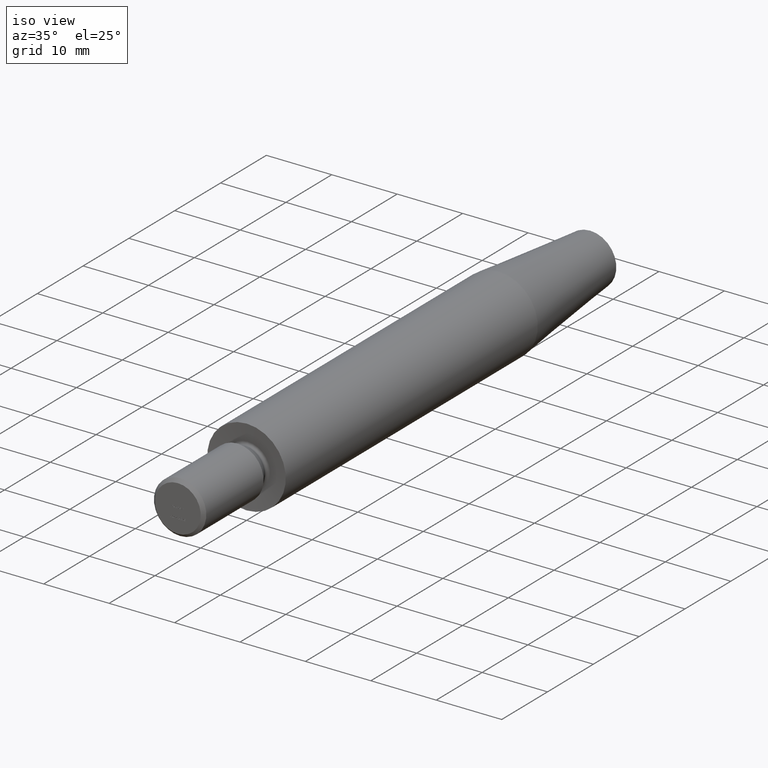
[diagram: clean part render]
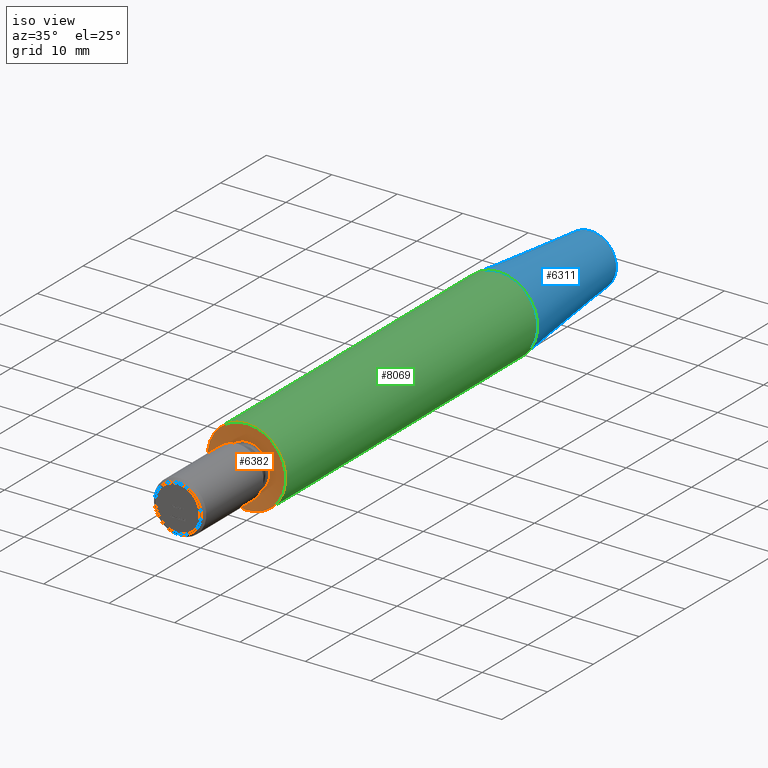
[diagram: same view with three faces highlighted in distinct colors, each labeled with its STEP entity id]
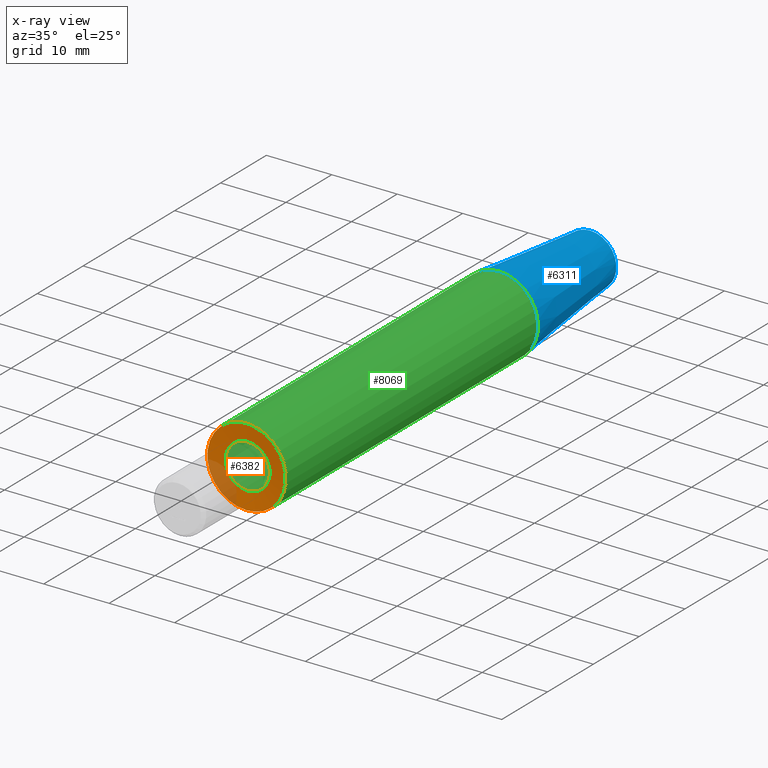
[diagram: x-ray of the same camera — body ghosted, the three highlighted faces saturated]
A machine part, iso view with three faces highlighted in distinct colors.
The next image is the same camera in x-ray (body ghosted, the three faces saturated) — at least one of them is partly hidden behind the body in this view.
Their STEP definitions:

[orange] entity #6382 — the highlighted conical surface has half-angle 85 deg.
#200 = EDGE_CURVE ( 'NONE', #7536, #7536, #11445, .T. ) ;
#1148 = DIRECTION ( 'NONE',  ( 0.000000000000000000, 0.000000000000000000, -1.000000000000000000 ) ) ;
#1271 = AXIS2_PLACEMENT_3D ( 'NONE', #10047, #7098, #1148 ) ;
#1739 = DIRECTION ( 'NONE',  ( -0.000000000000000000, -1.000000000000000000, -0.000000000000000000 ) ) ;
#2558 = VERTEX_POINT ( 'NONE', #4102 ) ;
#2774 = FACE_OUTER_BOUND ( 'NONE', #5287, .T. ) ;
#4102 = CARTESIAN_POINT ( 'NONE',  ( 0.000000000000000000, 0.000000000000000000, -6.000000000000003553 ) ) ;
#4888 = ORIENTED_EDGE ( 'NONE', *, *, #9991, .T. ) ;
#5287 = EDGE_LOOP ( 'NONE', ( #4888 ) ) ;
#6272 = AXIS2_PLACEMENT_3D ( 'NONE', #12611, #1739, #11614 ) ;
#6382 = ADVANCED_FACE ( 'NONE', ( #2774, #10703 ), #9626, .F. ) ;
#6612 = ORIENTED_EDGE ( 'NONE', *, *, #200, .F. ) ;
#6666 = DIRECTION ( 'NONE',  ( 0.000000000000000000, 0.000000000000000000, -1.000000000000000000 ) ) ;
#7098 = DIRECTION ( 'NONE',  ( -0.000000000000000000, -1.000000000000000000, -0.000000000000000000 ) ) ;
#7233 = EDGE_LOOP ( 'NONE', ( #6612 ) ) ;
#7442 = CARTESIAN_POINT ( 'NONE',  ( 0.000000000000000000, 0.2253502873125028116, 0.000000000000000000 ) ) ;
#7536 = VERTEX_POINT ( 'NONE', #11955 ) ;
#9626 = CONICAL_SURFACE ( 'NONE', #12564, 3.424234429575815142, 1.483529864195179737 ) ;
#9640 = CIRCLE ( 'NONE', #6272, 6.000000000000003553 ) ;
#9991 = EDGE_CURVE ( 'NONE', #2558, #2558, #9640, .T. ) ;
#10047 = CARTESIAN_POINT ( 'NONE',  ( 0.000000000000000000, 0.2253502873125028116, 0.000000000000000000 ) ) ;
#10446 = DIRECTION ( 'NONE',  ( -0.000000000000000000, -1.000000000000000000, -0.000000000000000000 ) ) ;
#10703 = FACE_BOUND ( 'NONE', #7233, .T. ) ;
#11445 = CIRCLE ( 'NONE', #1271, 3.424234429575815142 ) ;
#11614 = DIRECTION ( 'NONE',  ( 0.000000000000000000, 0.000000000000000000, -1.000000000000000000 ) ) ;
#11955 = CARTESIAN_POINT ( 'NONE',  ( 0.000000000000000000, 0.2253502873125028116, -3.424234429575815142 ) ) ;
#12564 = AXIS2_PLACEMENT_3D ( 'NONE', #7442, #10446, #6666 ) ;
#12611 = CARTESIAN_POINT ( 'NONE',  ( 0.000000000000000000, 0.000000000000000000, 0.000000000000000000 ) ) ;

[blue] entity #6311 — the highlighted conical surface has half-angle 5.711 deg.
#582 = AXIS2_PLACEMENT_3D ( 'NONE', #5833, #5873, #6828 ) ;
#1122 = CARTESIAN_POINT ( 'NONE',  ( 0.000000000000000000, 75.00000000000001421, -4.000000000000000000 ) ) ;
#1627 = VERTEX_POINT ( 'NONE', #10993 ) ;
#1704 = DIRECTION ( 'NONE',  ( 0.000000000000000000, 0.000000000000000000, -1.000000000000000000 ) ) ;
#1983 = CONICAL_SURFACE ( 'NONE', #6745, 6.000000000000003553, 0.09966865249116217684 ) ;
#2985 = CIRCLE ( 'NONE', #3950, 4.000000000000000000 ) ;
#3950 = AXIS2_PLACEMENT_3D ( 'NONE', #5590, #4607, #1704 ) ;
#4607 = DIRECTION ( 'NONE',  ( -0.000000000000000000, -1.000000000000000000, -0.000000000000000000 ) ) ;
#5109 = EDGE_CURVE ( 'NONE', #1627, #1627, #11165, .T. ) ;
#5590 = CARTESIAN_POINT ( 'NONE',  ( 0.000000000000000000, 75.00000000000001421, 0.000000000000000000 ) ) ;
#5599 = EDGE_LOOP ( 'NONE', ( #8101 ) ) ;
#5833 = CARTESIAN_POINT ( 'NONE',  ( 0.000000000000000000, 55.00000000000000711, 0.000000000000000000 ) ) ;
#5873 = DIRECTION ( 'NONE',  ( -0.000000000000000000, -1.000000000000000000, -0.000000000000000000 ) ) ;
#5960 = ORIENTED_EDGE ( 'NONE', *, *, #5109, .F. ) ;
#6311 = ADVANCED_FACE ( 'NONE', ( #6489, #10717 ), #1983, .T. ) ;
#6489 = FACE_BOUND ( 'NONE', #5599, .T. ) ;
#6745 = AXIS2_PLACEMENT_3D ( 'NONE', #12316, #12400, #11364 ) ;
#6828 = DIRECTION ( 'NONE',  ( 0.000000000000000000, 0.000000000000000000, -1.000000000000000000 ) ) ;
#8101 = ORIENTED_EDGE ( 'NONE', *, *, #12343, .T. ) ;
#9879 = VERTEX_POINT ( 'NONE', #1122 ) ;
#10524 = EDGE_LOOP ( 'NONE', ( #5960 ) ) ;
#10717 = FACE_OUTER_BOUND ( 'NONE', #10524, .T. ) ;
#10993 = CARTESIAN_POINT ( 'NONE',  ( 0.000000000000000000, 55.00000000000000711, -6.000000000000003553 ) ) ;
#11165 = CIRCLE ( 'NONE', #582, 6.000000000000003553 ) ;
#11364 = DIRECTION ( 'NONE',  ( 0.000000000000000000, 0.000000000000000000, -1.000000000000000000 ) ) ;
#12316 = CARTESIAN_POINT ( 'NONE',  ( 0.000000000000000000, 55.00000000000000711, 0.000000000000000000 ) ) ;
#12343 = EDGE_CURVE ( 'NONE', #9879, #9879, #2985, .T. ) ;
#12400 = DIRECTION ( 'NONE',  ( -0.000000000000000000, -1.000000000000000000, -0.000000000000000000 ) ) ;

[green] entity #8069 — the highlighted cylindrical surface (bore or boss wall) has radius 6 mm, axis along (-0, -1, -0).
#261 = EDGE_LOOP ( 'NONE', ( #1808 ) ) ;
#582 = AXIS2_PLACEMENT_3D ( 'NONE', #5833, #5873, #6828 ) ;
#911 = DIRECTION ( 'NONE',  ( 0.000000000000000000, 0.000000000000000000, -1.000000000000000000 ) ) ;
#1505 = EDGE_LOOP ( 'NONE', ( #10942 ) ) ;
#1627 = VERTEX_POINT ( 'NONE', #10993 ) ;
#1739 = DIRECTION ( 'NONE',  ( -0.000000000000000000, -1.000000000000000000, -0.000000000000000000 ) ) ;
#1808 = ORIENTED_EDGE ( 'NONE', *, *, #9991, .F. ) ;
#2558 = VERTEX_POINT ( 'NONE', #4102 ) ;
#4102 = CARTESIAN_POINT ( 'NONE',  ( 0.000000000000000000, 0.000000000000000000, -6.000000000000003553 ) ) ;
#4893 = CYLINDRICAL_SURFACE ( 'NONE', #6168, 6.000000000000003553 ) ;
#5109 = EDGE_CURVE ( 'NONE', #1627, #1627, #11165, .T. ) ;
#5833 = CARTESIAN_POINT ( 'NONE',  ( 0.000000000000000000, 55.00000000000000711, 0.000000000000000000 ) ) ;
#5873 = DIRECTION ( 'NONE',  ( -0.000000000000000000, -1.000000000000000000, -0.000000000000000000 ) ) ;
#6168 = AXIS2_PLACEMENT_3D ( 'NONE', #10782, #10868, #911 ) ;
#6272 = AXIS2_PLACEMENT_3D ( 'NONE', #12611, #1739, #11614 ) ;
#6828 = DIRECTION ( 'NONE',  ( 0.000000000000000000, 0.000000000000000000, -1.000000000000000000 ) ) ;
#7196 = FACE_OUTER_BOUND ( 'NONE', #261, .T. ) ;
#8069 = ADVANCED_FACE ( 'NONE', ( #9228, #7196 ), #4893, .T. ) ;
#9228 = FACE_OUTER_BOUND ( 'NONE', #1505, .T. ) ;
#9640 = CIRCLE ( 'NONE', #6272, 6.000000000000003553 ) ;
#9991 = EDGE_CURVE ( 'NONE', #2558, #2558, #9640, .T. ) ;
#10782 = CARTESIAN_POINT ( 'NONE',  ( 0.000000000000000000, -15.00000000000000355, 0.000000000000000000 ) ) ;
#10868 = DIRECTION ( 'NONE',  ( -0.000000000000000000, -1.000000000000000000, -0.000000000000000000 ) ) ;
#10942 = ORIENTED_EDGE ( 'NONE', *, *, #5109, .T. ) ;
#10993 = CARTESIAN_POINT ( 'NONE',  ( 0.000000000000000000, 55.00000000000000711, -6.000000000000003553 ) ) ;
#11165 = CIRCLE ( 'NONE', #582, 6.000000000000003553 ) ;
#11614 = DIRECTION ( 'NONE',  ( 0.000000000000000000, 0.000000000000000000, -1.000000000000000000 ) ) ;
#12611 = CARTESIAN_POINT ( 'NONE',  ( 0.000000000000000000, 0.000000000000000000, 0.000000000000000000 ) ) ;